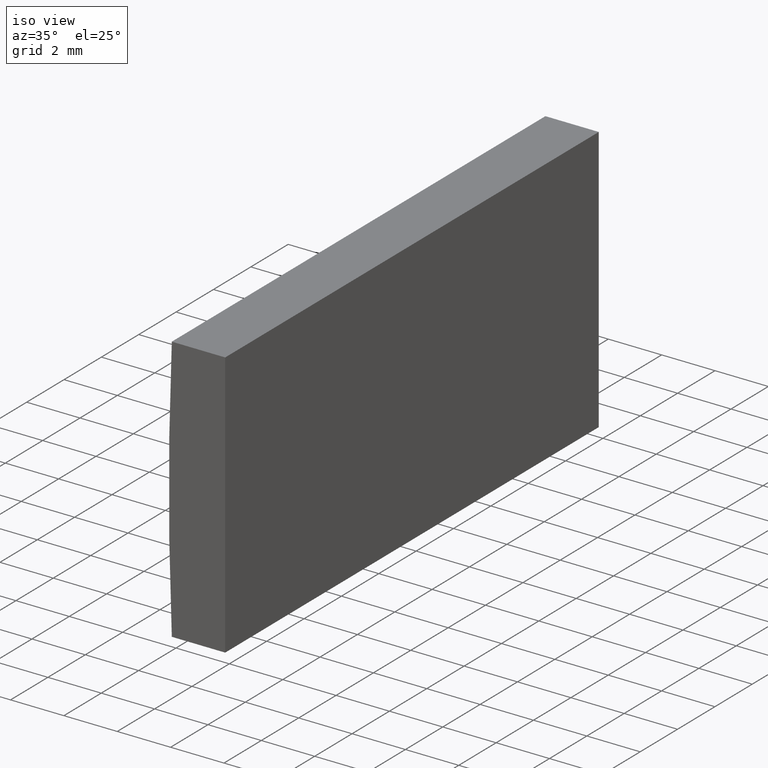
[diagram: clean part render]
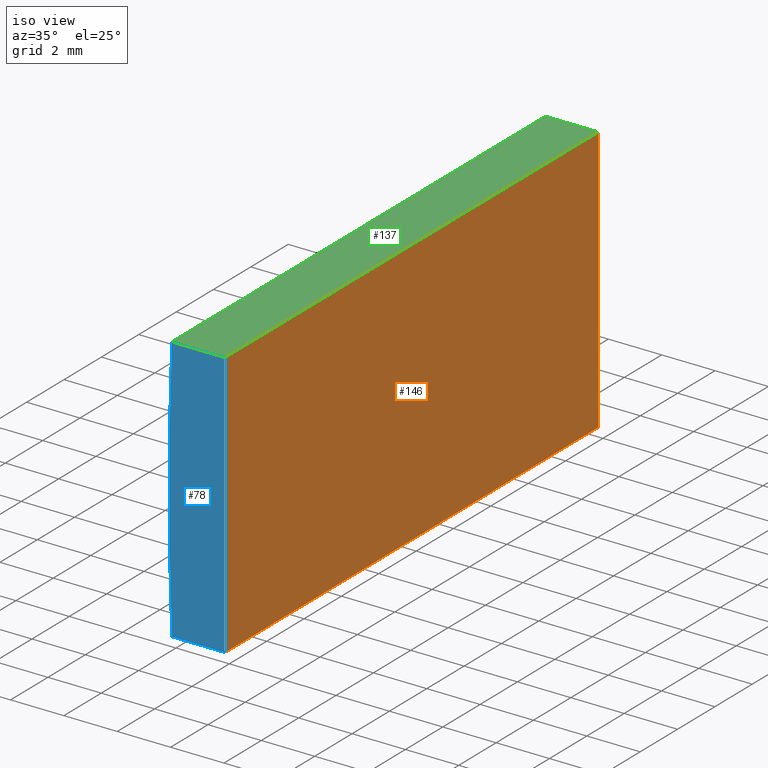
[diagram: same view with three faces highlighted in distinct colors, each labeled with its STEP entity id]
A machine part, iso view with three faces highlighted in distinct colors.
Their STEP definitions:

[orange] entity #146 — the highlighted planar face has unit normal (-1, 0, 0).
#4 = PLANE ( 'NONE',  #101 ) ;
#6 = VERTEX_POINT ( 'NONE', #81 ) ;
#13 = VECTOR ( 'NONE', #162, 1000.000000000000000 ) ;
#25 = DIRECTION ( 'NONE',  ( -0.0000000000000000000, -1.000000000000000000, -0.0000000000000000000 ) ) ;
#26 = LINE ( 'NONE', #46, #34 ) ;
#30 = ORIENTED_EDGE ( 'NONE', *, *, #39, .F. ) ;
#32 = EDGE_LOOP ( 'NONE', ( #147, #30, #103, #203 ) ) ;
#34 = VECTOR ( 'NONE', #44, 1000.000000000000000 ) ;
#39 = EDGE_CURVE ( 'NONE', #6, #45, #65, .T. ) ;
#44 = DIRECTION ( 'NONE',  ( -0.0000000000000000000, -0.0000000000000000000, -1.000000000000000000 ) ) ;
#45 = VERTEX_POINT ( 'NONE', #197 ) ;
#46 = CARTESIAN_POINT ( 'NONE',  ( -108.1547956651487400, 20.00000000000000000, -5.000000000000001800 ) ) ;
#47 = LINE ( 'NONE', #49, #75 ) ;
#49 = CARTESIAN_POINT ( 'NONE',  ( -108.1547956651487400, 0.0000000000000000000, -5.000000000000001800 ) ) ;
#55 = EDGE_CURVE ( 'NONE', #159, #45, #47, .T. ) ;
#63 = DIRECTION ( 'NONE',  ( 0.0000000000000000000, 0.0000000000000000000, 1.000000000000000000 ) ) ;
#64 = DIRECTION ( 'NONE',  ( -0.0000000000000000000, -0.0000000000000000000, -1.000000000000000000 ) ) ;
#65 = LINE ( 'NONE', #175, #88 ) ;
#73 = FACE_OUTER_BOUND ( 'NONE', #32, .T. ) ;
#75 = VECTOR ( 'NONE', #64, 1000.000000000000000 ) ;
#81 = CARTESIAN_POINT ( 'NONE',  ( -108.1547956651487400, 20.00000000000000000, -5.000000000000001800 ) ) ;
#88 = VECTOR ( 'NONE', #25, 1000.000000000000000 ) ;
#95 = LINE ( 'NONE', #200, #13 ) ;
#100 = DIRECTION ( 'NONE',  ( -1.000000000000000000, 0.0000000000000000000, 0.0000000000000000000 ) ) ;
#101 = AXIS2_PLACEMENT_3D ( 'NONE', #111, #100, #63 ) ;
#103 = ORIENTED_EDGE ( 'NONE', *, *, #110, .F. ) ;
#110 = EDGE_CURVE ( 'NONE', #169, #6, #26, .T. ) ;
#111 = CARTESIAN_POINT ( 'NONE',  ( -108.1547956651487400, 20.00000000000000000, -5.000000000000001800 ) ) ;
#124 = CARTESIAN_POINT ( 'NONE',  ( -108.1547956651487400, 20.00000000000000000, 5.000000000000000000 ) ) ;
#146 = ADVANCED_FACE ( 'NONE', ( #73 ), #4, .F. ) ;
#147 = ORIENTED_EDGE ( 'NONE', *, *, #55, .T. ) ;
#158 = CARTESIAN_POINT ( 'NONE',  ( -108.1547956651487400, 0.0000000000000000000, 5.000000000000000000 ) ) ;
#159 = VERTEX_POINT ( 'NONE', #158 ) ;
#162 = DIRECTION ( 'NONE',  ( -0.0000000000000000000, -1.000000000000000000, -0.0000000000000000000 ) ) ;
#169 = VERTEX_POINT ( 'NONE', #124 ) ;
#175 = CARTESIAN_POINT ( 'NONE',  ( -108.1547956651487400, 20.00000000000000000, -5.000000000000001800 ) ) ;
#197 = CARTESIAN_POINT ( 'NONE',  ( -108.1547956651487400, 0.0000000000000000000, -5.000000000000001800 ) ) ;
#198 = EDGE_CURVE ( 'NONE', #169, #159, #95, .T. ) ;
#200 = CARTESIAN_POINT ( 'NONE',  ( -108.1547956651487400, 20.00000000000000000, 5.000000000000000000 ) ) ;
#203 = ORIENTED_EDGE ( 'NONE', *, *, #198, .T. ) ;

[blue] entity #78 — the highlighted planar face has unit normal (0, 1, 0).
#8 = VECTOR ( 'NONE', #71, 1000.000000000000000 ) ;
#12 = LINE ( 'NONE', #72, #8 ) ;
#16 = VERTEX_POINT ( 'NONE', #28 ) ;
#19 = EDGE_LOOP ( 'NONE', ( #58, #125, #186, #82 ) ) ;
#20 = EDGE_CURVE ( 'NONE', #91, #159, #85, .T. ) ;
#27 = AXIS2_PLACEMENT_3D ( 'NONE', #40, #190, #68 ) ;
#28 = CARTESIAN_POINT ( 'NONE',  ( -110.1556877235027200, 0.0000000000000000000, -5.000000000000000000 ) ) ;
#29 = CARTESIAN_POINT ( 'NONE',  ( 4.355204334851265500, 0.0000000000000000000, 4.286263797015675000E-017 ) ) ;
#40 = CARTESIAN_POINT ( 'NONE',  ( 4.355204334851265500, 0.0000000000000000000, 4.286263797015675000E-017 ) ) ;
#42 = CIRCLE ( 'NONE', #27, 114.6199999999999900 ) ;
#45 = VERTEX_POINT ( 'NONE', #197 ) ;
#47 = LINE ( 'NONE', #49, #75 ) ;
#49 = CARTESIAN_POINT ( 'NONE',  ( -108.1547956651487400, 0.0000000000000000000, -5.000000000000001800 ) ) ;
#53 = FACE_OUTER_BOUND ( 'NONE', #19, .T. ) ;
#55 = EDGE_CURVE ( 'NONE', #159, #45, #47, .T. ) ;
#56 = PLANE ( 'NONE',  #161 ) ;
#58 = ORIENTED_EDGE ( 'NONE', *, *, #60, .F. ) ;
#60 = EDGE_CURVE ( 'NONE', #16, #91, #42, .T. ) ;
#64 = DIRECTION ( 'NONE',  ( -0.0000000000000000000, -0.0000000000000000000, -1.000000000000000000 ) ) ;
#68 = DIRECTION ( 'NONE',  ( 0.0000000000000000000, 0.0000000000000000000, 1.000000000000000000 ) ) ;
#71 = DIRECTION ( 'NONE',  ( -1.000000000000000000, -0.0000000000000000000, 8.669750418240285800E-016 ) ) ;
#72 = CARTESIAN_POINT ( 'NONE',  ( -110.1556877235027200, 0.0000000000000000000, -5.000000000000000000 ) ) ;
#75 = VECTOR ( 'NONE', #64, 1000.000000000000000 ) ;
#78 = ADVANCED_FACE ( 'NONE', ( #53 ), #56, .F. ) ;
#82 = ORIENTED_EDGE ( 'NONE', *, *, #20, .F. ) ;
#85 = LINE ( 'NONE', #150, #98 ) ;
#91 = VERTEX_POINT ( 'NONE', #132 ) ;
#97 = DIRECTION ( 'NONE',  ( 1.000000000000000000, 0.0000000000000000000, 0.0000000000000000000 ) ) ;
#98 = VECTOR ( 'NONE', #97, 1000.000000000000000 ) ;
#125 = ORIENTED_EDGE ( 'NONE', *, *, #180, .F. ) ;
#132 = CARTESIAN_POINT ( 'NONE',  ( -110.1556877235027200, 0.0000000000000000000, 5.000000000000000000 ) ) ;
#133 = DIRECTION ( 'NONE',  ( 0.0000000000000000000, 1.000000000000000000, 0.0000000000000000000 ) ) ;
#150 = CARTESIAN_POINT ( 'NONE',  ( -110.1556877235027200, 0.0000000000000000000, 5.000000000000000000 ) ) ;
#158 = CARTESIAN_POINT ( 'NONE',  ( -108.1547956651487400, 0.0000000000000000000, 5.000000000000000000 ) ) ;
#159 = VERTEX_POINT ( 'NONE', #158 ) ;
#161 = AXIS2_PLACEMENT_3D ( 'NONE', #29, #133, #164 ) ;
#164 = DIRECTION ( 'NONE',  ( 0.0000000000000000000, -0.0000000000000000000, 1.000000000000000000 ) ) ;
#180 = EDGE_CURVE ( 'NONE', #45, #16, #12, .T. ) ;
#186 = ORIENTED_EDGE ( 'NONE', *, *, #55, .F. ) ;
#190 = DIRECTION ( 'NONE',  ( 0.0000000000000000000, 1.000000000000000000, 0.0000000000000000000 ) ) ;
#197 = CARTESIAN_POINT ( 'NONE',  ( -108.1547956651487400, 0.0000000000000000000, -5.000000000000001800 ) ) ;

[green] entity #137 — the highlighted planar face has unit normal (0, 0, -1).
#2 = EDGE_LOOP ( 'NONE', ( #24, #21, #84, #113 ) ) ;
#9 = DIRECTION ( 'NONE',  ( -1.000000000000000000, 0.0000000000000000000, -0.0000000000000000000 ) ) ;
#10 = AXIS2_PLACEMENT_3D ( 'NONE', #116, #134, #9 ) ;
#13 = VECTOR ( 'NONE', #162, 1000.000000000000000 ) ;
#20 = EDGE_CURVE ( 'NONE', #91, #159, #85, .T. ) ;
#21 = ORIENTED_EDGE ( 'NONE', *, *, #198, .F. ) ;
#24 = ORIENTED_EDGE ( 'NONE', *, *, #20, .T. ) ;
#41 = CARTESIAN_POINT ( 'NONE',  ( -110.1556877235027200, 20.00000000000000000, 5.000000000000000000 ) ) ;
#48 = FACE_OUTER_BOUND ( 'NONE', #2, .T. ) ;
#84 = ORIENTED_EDGE ( 'NONE', *, *, #139, .F. ) ;
#85 = LINE ( 'NONE', #150, #98 ) ;
#87 = VERTEX_POINT ( 'NONE', #144 ) ;
#91 = VERTEX_POINT ( 'NONE', #132 ) ;
#95 = LINE ( 'NONE', #200, #13 ) ;
#97 = DIRECTION ( 'NONE',  ( 1.000000000000000000, 0.0000000000000000000, 0.0000000000000000000 ) ) ;
#98 = VECTOR ( 'NONE', #97, 1000.000000000000000 ) ;
#99 = VECTOR ( 'NONE', #160, 1000.000000000000000 ) ;
#108 = LINE ( 'NONE', #131, #193 ) ;
#112 = EDGE_CURVE ( 'NONE', #87, #91, #114, .T. ) ;
#113 = ORIENTED_EDGE ( 'NONE', *, *, #112, .T. ) ;
#114 = LINE ( 'NONE', #41, #99 ) ;
#116 = CARTESIAN_POINT ( 'NONE',  ( -110.1556877235027200, 20.00000000000000000, 5.000000000000000000 ) ) ;
#124 = CARTESIAN_POINT ( 'NONE',  ( -108.1547956651487400, 20.00000000000000000, 5.000000000000000000 ) ) ;
#131 = CARTESIAN_POINT ( 'NONE',  ( -110.1556877235027200, 20.00000000000000000, 5.000000000000000000 ) ) ;
#132 = CARTESIAN_POINT ( 'NONE',  ( -110.1556877235027200, 0.0000000000000000000, 5.000000000000000000 ) ) ;
#134 = DIRECTION ( 'NONE',  ( 0.0000000000000000000, 0.0000000000000000000, -1.000000000000000000 ) ) ;
#137 = ADVANCED_FACE ( 'NONE', ( #48 ), #188, .F. ) ;
#139 = EDGE_CURVE ( 'NONE', #87, #169, #108, .T. ) ;
#144 = CARTESIAN_POINT ( 'NONE',  ( -110.1556877235027200, 20.00000000000000000, 5.000000000000000000 ) ) ;
#150 = CARTESIAN_POINT ( 'NONE',  ( -110.1556877235027200, 0.0000000000000000000, 5.000000000000000000 ) ) ;
#158 = CARTESIAN_POINT ( 'NONE',  ( -108.1547956651487400, 0.0000000000000000000, 5.000000000000000000 ) ) ;
#159 = VERTEX_POINT ( 'NONE', #158 ) ;
#160 = DIRECTION ( 'NONE',  ( -0.0000000000000000000, -1.000000000000000000, -0.0000000000000000000 ) ) ;
#162 = DIRECTION ( 'NONE',  ( -0.0000000000000000000, -1.000000000000000000, -0.0000000000000000000 ) ) ;
#169 = VERTEX_POINT ( 'NONE', #124 ) ;
#173 = DIRECTION ( 'NONE',  ( 1.000000000000000000, 0.0000000000000000000, 0.0000000000000000000 ) ) ;
#188 = PLANE ( 'NONE',  #10 ) ;
#193 = VECTOR ( 'NONE', #173, 1000.000000000000000 ) ;
#198 = EDGE_CURVE ( 'NONE', #169, #159, #95, .T. ) ;
#200 = CARTESIAN_POINT ( 'NONE',  ( -108.1547956651487400, 20.00000000000000000, 5.000000000000000000 ) ) ;